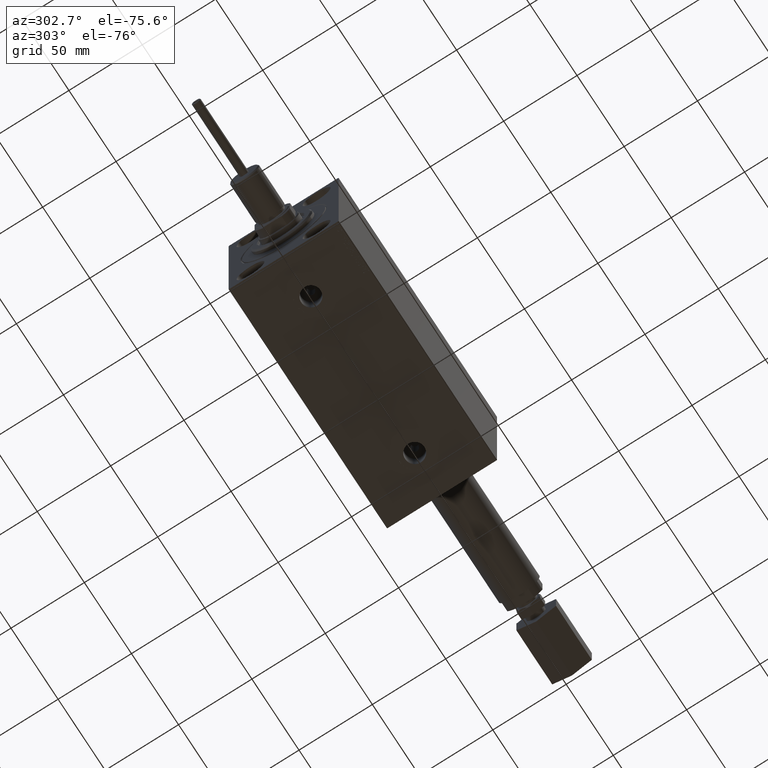
[diagram: clean part render]
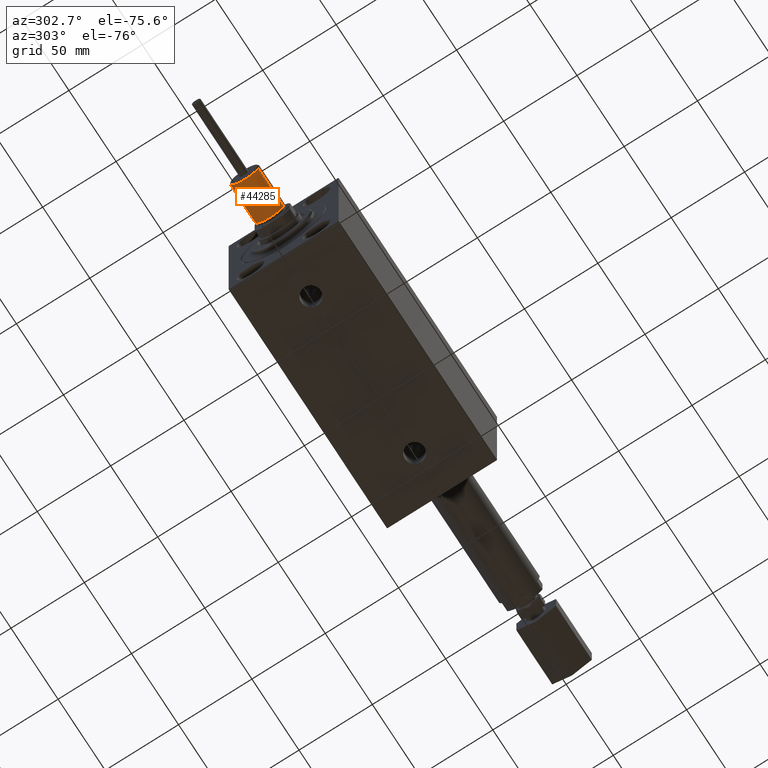
[diagram: same view with one face highlighted and labeled with its STEP entity id]
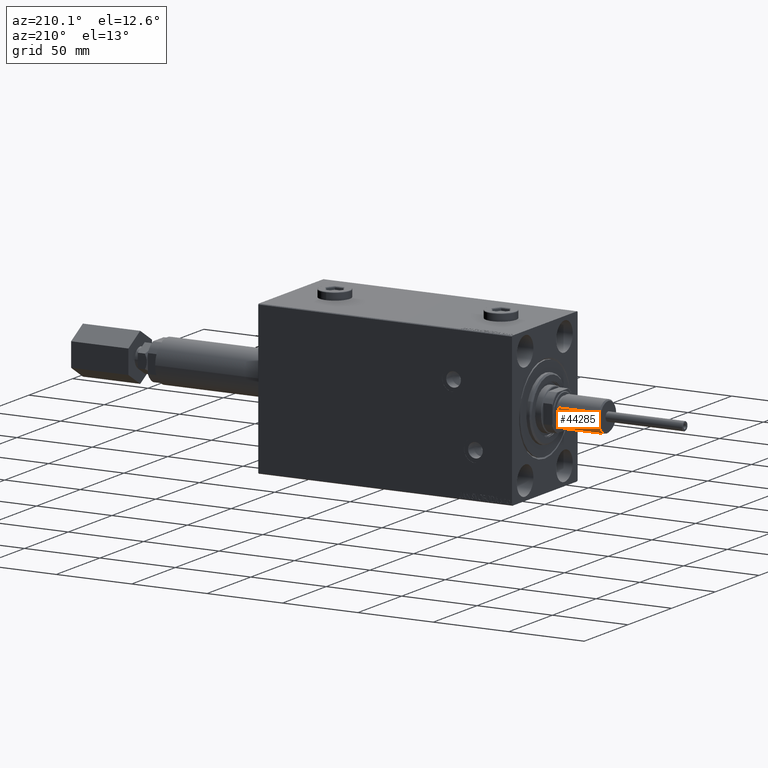
[diagram: same view with one face highlighted and labeled with its STEP entity id]
A machine part, auxiliary view. The second image highlights one B-rep face of the part: STEP entity #44285.
A second angle (auxiliary view) of the same face is appended — the face is thin or edge-on in the first view.
In plain terms, the highlighted cylindrical surface (edge-blend (fillet) strip) has radius 10 mm, axis along (-1, 0, 0).
Its self-contained STEP definition (entity closure, byte-faithful):
#729 = ORIENTED_EDGE ( 'NONE', *, *, #10957, .T. ) ;
#740 = FACE_OUTER_BOUND ( 'NONE', #20951, .T. ) ;
#2429 = CARTESIAN_POINT ( 'NONE',  ( 0.000000000000000000, 0.000000000000000000, 27.50000000000000000 ) ) ;
#2613 = ORIENTED_EDGE ( 'NONE', *, *, #44364, .F. ) ;
#3946 = AXIS2_PLACEMENT_3D ( 'NONE', #36624, #15951, #11148 ) ;
#6944 = VERTEX_POINT ( 'NONE', #30708 ) ;
#10957 = EDGE_CURVE ( 'NONE', #19246, #6944, #20757, .T. ) ;
#11148 = DIRECTION ( 'NONE',  ( 1.000000000000000000, 0.000000000000000000, 0.000000000000000000 ) ) ;
#11272 = DIRECTION ( 'NONE',  ( -0.000000000000000000, -0.000000000000000000, -1.000000000000000000 ) ) ;
#11514 = CARTESIAN_POINT ( 'NONE',  ( 0.000000000000000000, 0.000000000000000000, 27.50000000000000000 ) ) ;
#12002 = DIRECTION ( 'NONE',  ( -1.000000000000000000, 0.000000000000000000, 0.000000000000000000 ) ) ;
#13361 = AXIS2_PLACEMENT_3D ( 'NONE', #11514, #11272, #12002 ) ;
#15951 = DIRECTION ( 'NONE',  ( -0.000000000000000000, -0.000000000000000000, 1.000000000000000000 ) ) ;
#17211 = VECTOR ( 'NONE', #44450, 1000.000000000000000 ) ;
#19246 = VERTEX_POINT ( 'NONE', #35065 ) ;
#20757 = LINE ( 'NONE', #40514, #17211 ) ;
#20951 = EDGE_LOOP ( 'NONE', ( #39685, #729, #33257, #2613 ) ) ;
#21178 = VERTEX_POINT ( 'NONE', #23567 ) ;
#21358 = CIRCLE ( 'NONE', #28401, 10.00000000000000000 ) ;
#22409 = EDGE_CURVE ( 'NONE', #19246, #25153, #21358, .T. ) ;
#23567 = CARTESIAN_POINT ( 'NONE',  ( -10.00000000000000000, 0.000000000000000000, 0.7999999999999986011 ) ) ;
#23737 = DIRECTION ( 'NONE',  ( -0.000000000000000000, -0.000000000000000000, -1.000000000000000000 ) ) ;
#24459 = LINE ( 'NONE', #47028, #38400 ) ;
#24954 = DIRECTION ( 'NONE',  ( 1.000000000000000000, 0.000000000000000000, 0.000000000000000000 ) ) ;
#25153 = VERTEX_POINT ( 'NONE', #40532 ) ;
#26213 = CYLINDRICAL_SURFACE ( 'NONE', #13361, 10.00000000000000000 ) ;
#28401 = AXIS2_PLACEMENT_3D ( 'NONE', #2429, #38949, #24954 ) ;
#29763 = CIRCLE ( 'NONE', #3946, 10.00000000000000000 ) ;
#30708 = CARTESIAN_POINT ( 'NONE',  ( 10.00000000000000000, 1.224646799147353256E-15, 0.7999999999999986011 ) ) ;
#33257 = ORIENTED_EDGE ( 'NONE', *, *, #46650, .T. ) ;
#35065 = CARTESIAN_POINT ( 'NONE',  ( 10.00000000000000000, 1.224646799147353256E-15, 27.50000000000000000 ) ) ;
#36624 = CARTESIAN_POINT ( 'NONE',  ( 0.000000000000000000, 0.000000000000000000, 0.7999999999999986011 ) ) ;
#38400 = VECTOR ( 'NONE', #23737, 1000.000000000000000 ) ;
#38949 = DIRECTION ( 'NONE',  ( 0.000000000000000000, 0.000000000000000000, 1.000000000000000000 ) ) ;
#39685 = ORIENTED_EDGE ( 'NONE', *, *, #22409, .F. ) ;
#40514 = CARTESIAN_POINT ( 'NONE',  ( 10.00000000000000000, 1.224646799147353256E-15, 27.50000000000000000 ) ) ;
#40532 = CARTESIAN_POINT ( 'NONE',  ( -10.00000000000000000, 0.000000000000000000, 27.50000000000000000 ) ) ;
#44285 = ADVANCED_FACE ( 'NONE', ( #740 ), #26213, .T. ) ;
#44364 = EDGE_CURVE ( 'NONE', #25153, #21178, #24459, .T. ) ;
#44450 = DIRECTION ( 'NONE',  ( -0.000000000000000000, -0.000000000000000000, -1.000000000000000000 ) ) ;
#46650 = EDGE_CURVE ( 'NONE', #6944, #21178, #29763, .T. ) ;
#47028 = CARTESIAN_POINT ( 'NONE',  ( -10.00000000000000000, 0.000000000000000000, 27.50000000000000000 ) ) ;